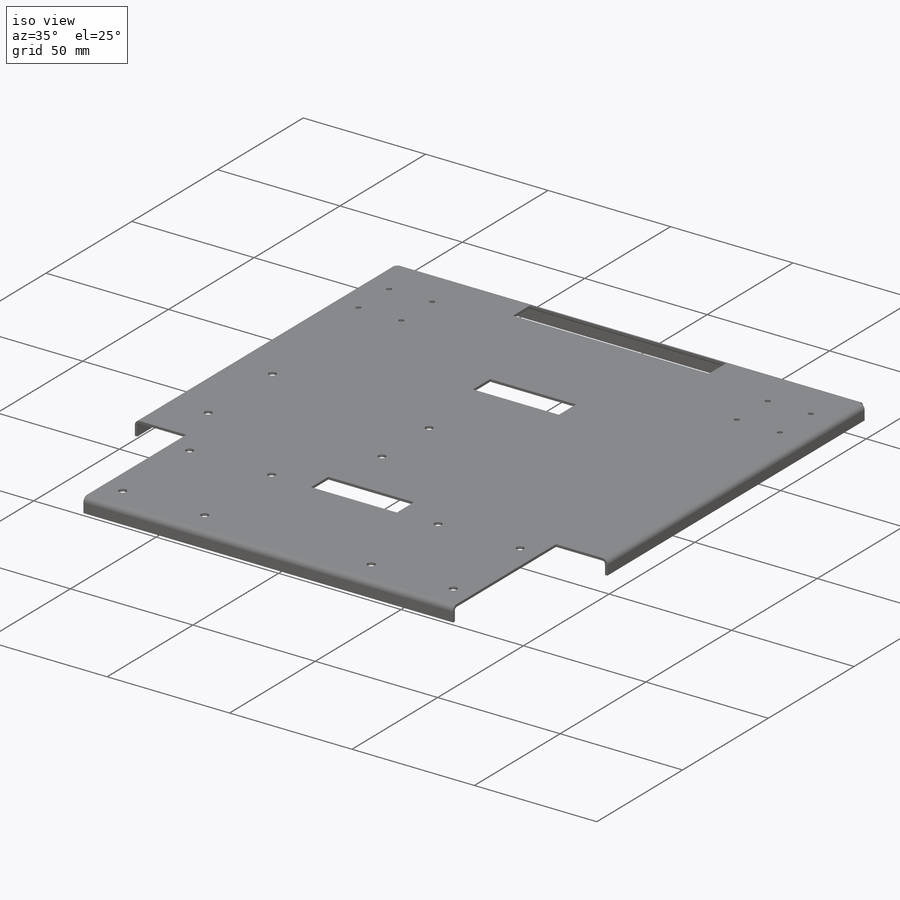
[diagram: iso view]
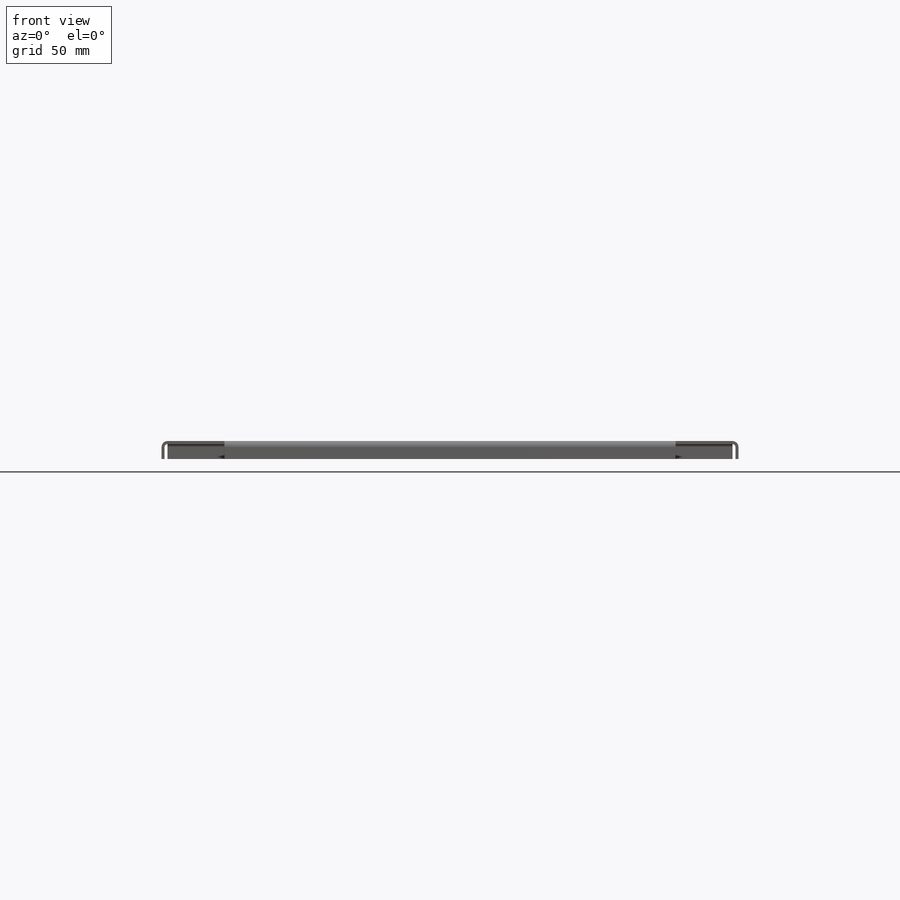
[diagram: front view]
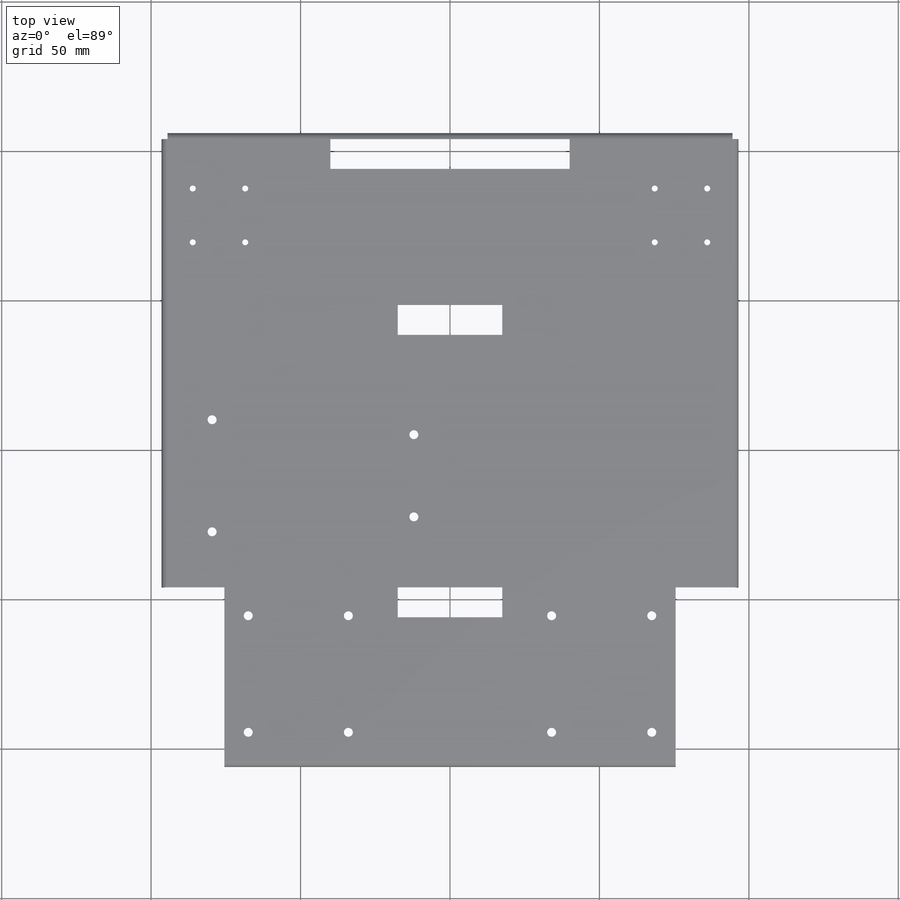
[diagram: top view]
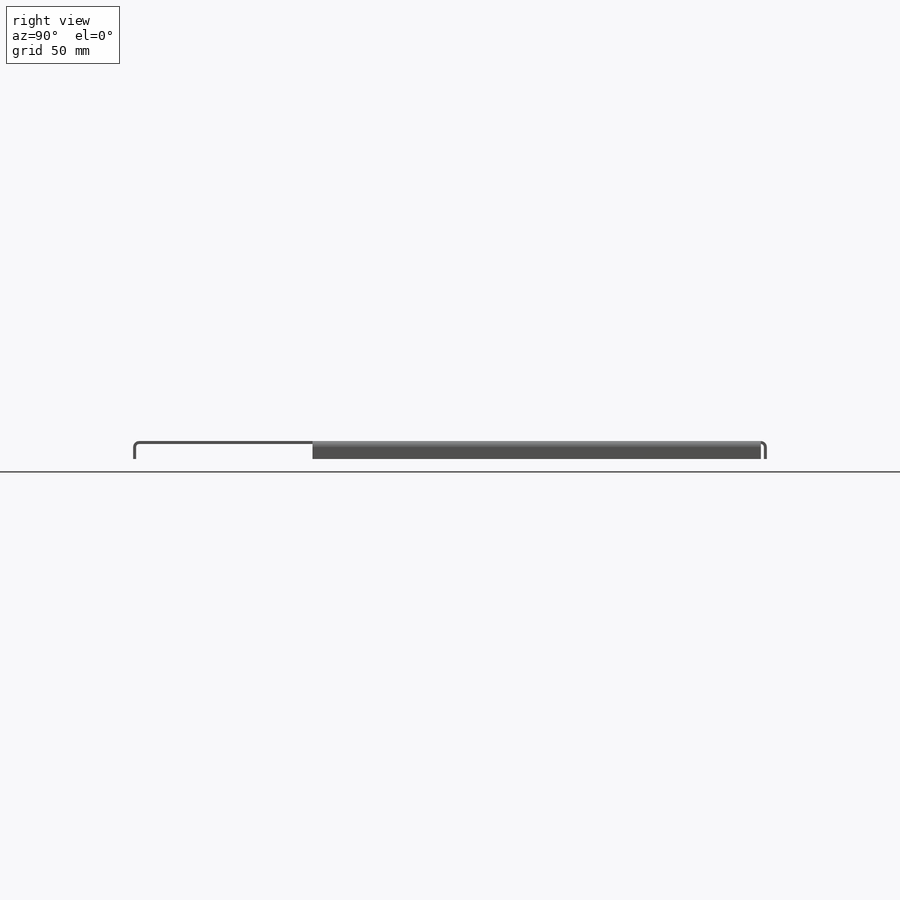
[diagram: right view]
SOLIDWORKS PART (.sldprt)
format: sldprt  version: not decoded by parser v0  size: 483,328 bytes
history: native  units: mm
features: sketch x16, cut_extrude x8, sheet_metal_op x5, material x1 + 4 further entries (+11 scaffold rows collapsed; 1 parser-record rows omitted)
feature tree (46):
  scaffold x11  (default folders/planes/origin — collapsed)
  material  "Material <not specified>"
  sketch  "Sketch1"  dims[D1=208.0mm D2=189.0mm]
  sheet_metal_op  "Sheet-Metal1"
  sheet_metal_op  "Base-Flange1"
  sketch  "Sketch6"  dims[c1.D1=1.0mm c1.D4=90.0deg c1.D5=1.0 c1.D8=0.5mm c1.D9=0.5mm c2.D1=1.0mm c2.D2=500.0mm c2.D3=0.0mm c2.D6=10.0mm c2.D7=5.0mm c2.Edge-Flange2=0.0]
  sketch  "Sketch9"
  sheet_metal_op  "EdgeBend2"  Edge-Flange3=0
  sketch  "Sketch12"
  sheet_metal_op  "EdgeBend3"  Edge-Flange4=0
  sketch  "Sketch15"
  sheet_metal_op  "EdgeBend4"
  sketch  "Sketch16"
  sketch  "Sketch17"  dims[D1=0.0mm D2=60.0mm D3=21.0mm]
  cut_extrude  "Cut-Extrude1"  [1 undecoded]
  sketch  "Sketch18"  dims[D1=10.0mm D2=0.0mm D3=80.0mm]
  cut_extrude  "Cut-Extrude2"  Depth=10mm
  sketch  "Sketch20"  dims[c1.D2=~8.976515mm c1.D3=3.0mm c1.D4=3.0mm c1.D5=3.0mm c1.D6=3.0mm c1.D1=14.9156mm c2.D2=~18.585146mm c2.D5=67.5mm c2.D6=5.0mm c2.D7=18.75mm]
  cut_extrude  "Cut-Extrude3"  Depth=10mm
  sketch  "Sketch21"  dims[c1.D4=~3.041875mm c1.D5=~3.041875mm c1.D6=2.0mm c1.D7=2.0mm c1.D1=24.0mm c1.D2=24.0mm c1.D3=5.0mm c2.D4=3.0mm c2.D5=3.0mm c2.D7=18.0mm]
  cut_extrude  "Cut-Extrude4"  Depth=10mm
  sketch  "Sketch22"  dims[c1.D4=3.0mm c1.D5=3.0mm c1.D6=3.0mm c1.D7=3.0mm c1.D8=3.0mm c1.D10=3.0mm c1.D11=3.0mm c1.D12=3.0mm c1.D13=3.0mm c1.D14=3.0mm c1.D15=3.0mm c1.D16=3.0mm c1.D17=3.0mm c1.D18=3.0mm c1.D19=3.0mm c1.D20=3.0mm c1.D1=3.0mm c1.D2=3.0mm c1.D3=3.0mm c2.D4=3.0mm c2.D1=18.5mm c2.D2=51.5mm c2.D3=51.5mm c2.D5=6.5mm c2.D6=8.0mm c2.D8=10.0mm c2.D9=21.0mm c2.D11=6.5mm c2.D12=8.0mm c2.D14=10.0mm c2.D15=19.0mm c2.D17=8.0mm c2.D18=6.5mm c3.D1=8.0mm c3.D2=8.0mm c3.D3=33.5mm c3.D4=33.5mm]
  cut_extrude  "Cut-Extrude5"  Depth=10mm
  sketch  "Sketch23"  dims[D1=5.0mm D2=35.0mm D3=10.0mm D4=35.0mm]
  cut_extrude  "Cut-Extrude6"  Depth=10mm
  "Flat-Pattern1"
  sketch  "Bend-Lines1"
  sketch  "Bounding-Box1"
  "Flatten-<EdgeBend2>1"
  "Flatten-<EdgeBend3>1"
  "Flatten-<EdgeBend4>1"
  parser-record x1  (decoder bookkeeping rows leaked as tree rows — omitted from the tree; the rows remain in map.json)
  sketch  "Sketch24"  dims[D1=~1.178097mm D2=10.0mm D3=1.1789mm D4=10.0mm]
  cut_extrude  "Cut-Extrude7"  Depth=10mm
  sketch  "Sketch25"  dims[D1=10.0mm D2=~1.178097mm]
  cut_extrude  "Cut-Extrude8"  Depth=10mm
decode coverage: 19 of 29 modeling features carry decoded parameters; 4 rows unclassified (native names shown)
note: ~ marks probable driven/reference dimensions
note: 1 parameter value undecoded
note: suppression state not decoded; provenance and decode notes live in map.json
